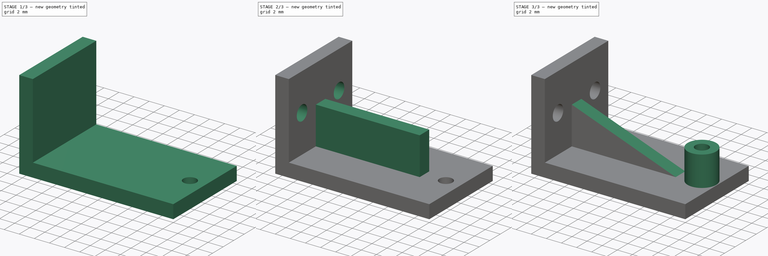
[diagram: build sequence overview — one tinted view per stage of 3, left to right]
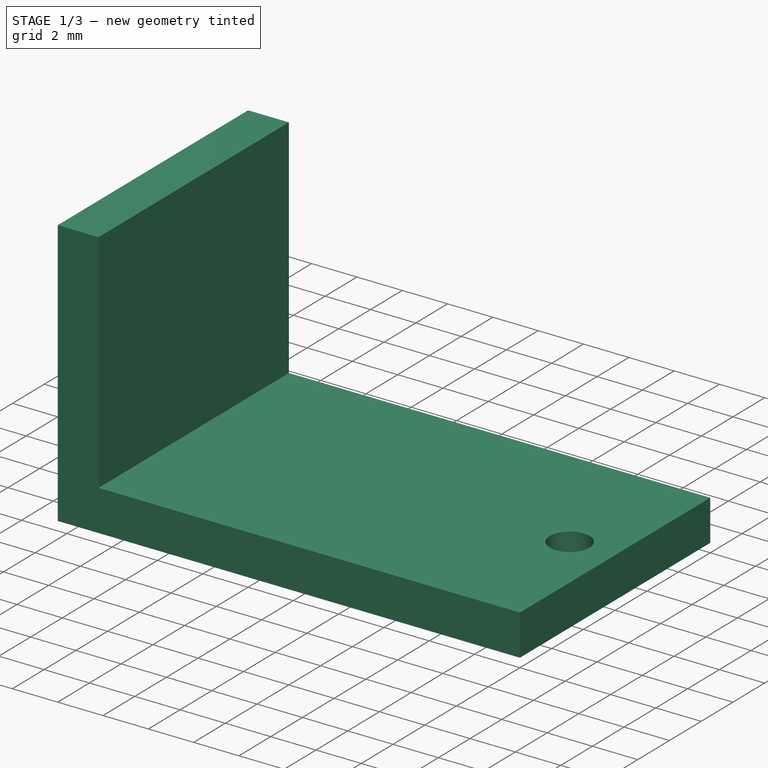
[diagram: stage 1 of 3 — iso view after this stage's code; geometry added in this stage tinted green]
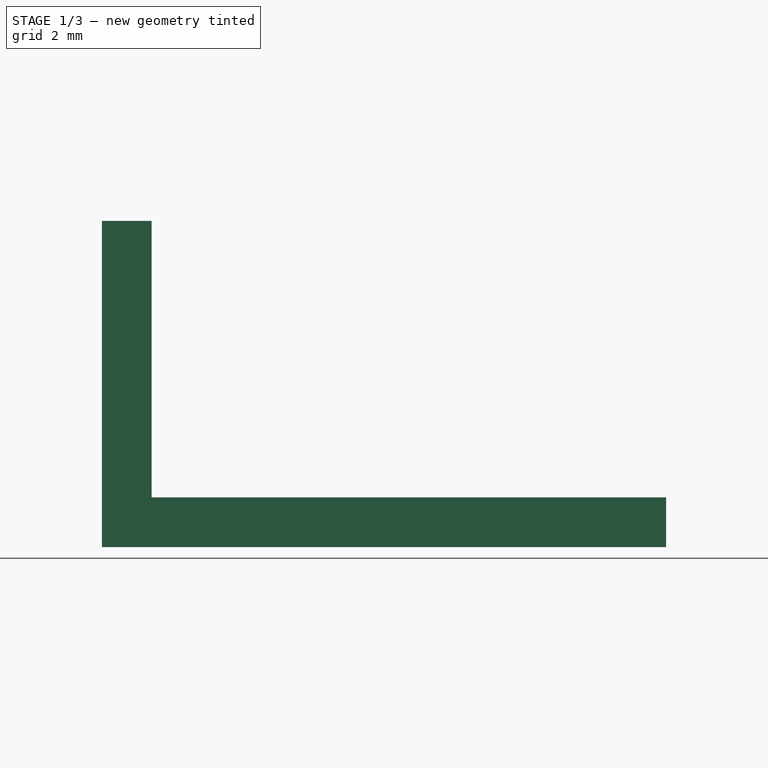
[diagram: stage 1 of 3 — front view after this stage's code; geometry added in this stage tinted green]
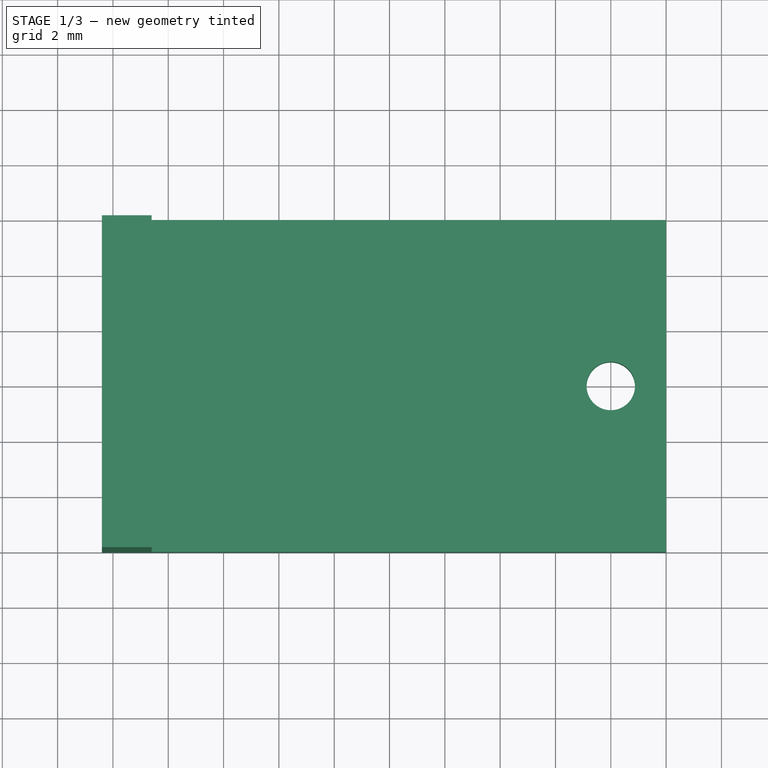
[diagram: stage 1 of 3 — top view after this stage's code; geometry added in this stage tinted green]
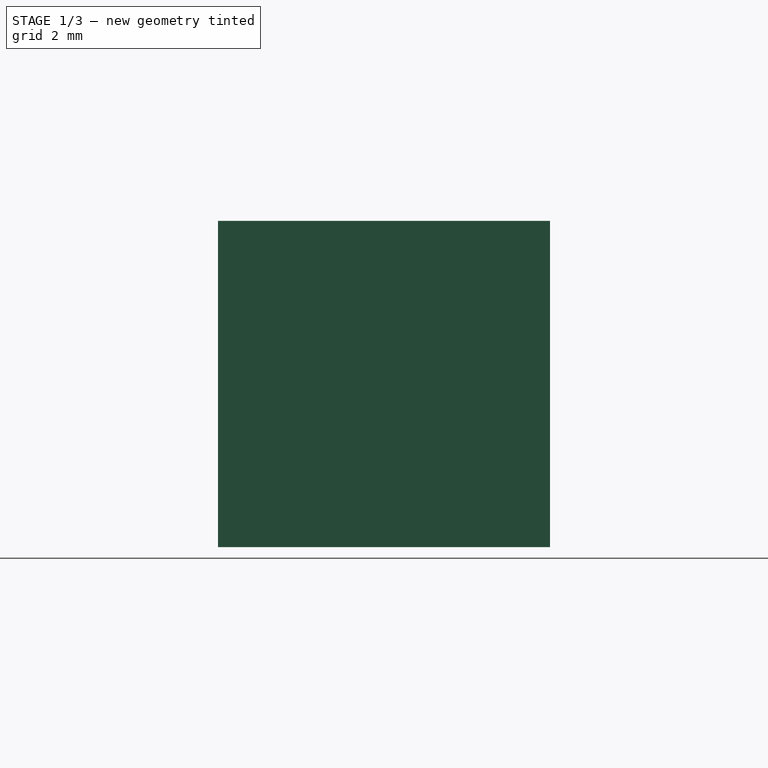
[diagram: stage 1 of 3 — right view after this stage's code; geometry added in this stage tinted green]
FCSTD DOCUMENT  (FreeCAD 0.16R4928 (Git))
Label: servo_stabilizer
License: All rights reserved
LicenseURL: http://en.wikipedia.org/wiki/All_rights_reserved
objects: Sketcher::SketchObject×6, PartDesign::Pad×4, PartDesign::Pocket×2
note: 18 computed .brp shape members not serialized (recipe doc carries the construction recipe); baked Part::Feature solids carry a one-line shape summary decoded from their .brp

FEATURE [Sketcher::SketchObject] Sketch
  sketch-geometry (6):
    g0: Circle CenterX=0 CenterY=0 CenterZ=0 NormalX=0 NormalY=0 NormalZ=1 Radius=0.875
    g1: LineSegment StartX=-18.4 StartY=6 StartZ=0 EndX=2 EndY=6 EndZ=0
    g2: LineSegment StartX=2 StartY=-6 StartZ=0 EndX=-18.4 EndY=-6 EndZ=0
    g3: LineSegment StartX=-18.4 StartY=-6 StartZ=0 EndX=-18.4 EndY=6 EndZ=0
    g4: LineSegment StartX=2 StartY=0 StartZ=0 EndX=2 EndY=6 EndZ=0
    g5: LineSegment StartX=2 StartY=0 StartZ=0 EndX=2 EndY=-6 EndZ=0
  constraints (17):
    c: Coincident(g0,g-1)
    c: Radius(g0) = 0.875
    c: Coincident(g2,g3)
    c: Coincident(g3,g1)
    c: Horizontal(g1)
    c: Horizontal(g2)
    c: Vertical(g3)
    c: Distance(g1) = 20.4
    c: Vertical(g4)
    c: Coincident(g4,g1)
    c: Coincident(g5,g4)
    c: Coincident(g5,g2)
    c: Vertical(g5)
    c: Equal(g4,g5)
    c: DistanceY(g1,g2) = -12
    c: PointOnObject(g4,g-1)
    c: DistanceX(g-1,g4) = 2
FEATURE [PartDesign::Pad] Pad
  Length = 1.8
  Length2 = 100
  Sketch = -> Sketch
  Type = 0
FEATURE [Sketcher::SketchObject] Sketch001
  ExternalGeometry = -> [Pad]
  Placement = pos=(0,0,1.8) rot=(0,0,1;0rad)
  Support = -> Pad [Face8]
  sketch-geometry (4):
    g0: LineSegment StartX=-18.4 StartY=6 StartZ=0 EndX=-16.6 EndY=6 EndZ=0
    g1: LineSegment StartX=-16.6 StartY=6 StartZ=0 EndX=-16.6 EndY=-6 EndZ=0
    g2: LineSegment StartX=-16.6 StartY=-6 StartZ=0 EndX=-18.4 EndY=-6 EndZ=0
    g3: LineSegment StartX=-18.4 StartY=-6 StartZ=0 EndX=-18.4 EndY=6 EndZ=0
  constraints (11):
    c: Coincident(g0,g1)
    c: Coincident(g1,g2)
    c: Coincident(g2,g3)
    c: Coincident(g3,g0)
    c: Horizontal(g0)
    c: Horizontal(g2)
    c: Vertical(g1)
    c: Vertical(g3)
    c: Coincident(g0,g-3)
    c: Coincident(g2,g-3)
    c: Distance(g2) = 1.8
FEATURE [PartDesign::Pad] Pad001
  Length = 10
  Length2 = 100
  Sketch = -> Sketch001
  Type = 0
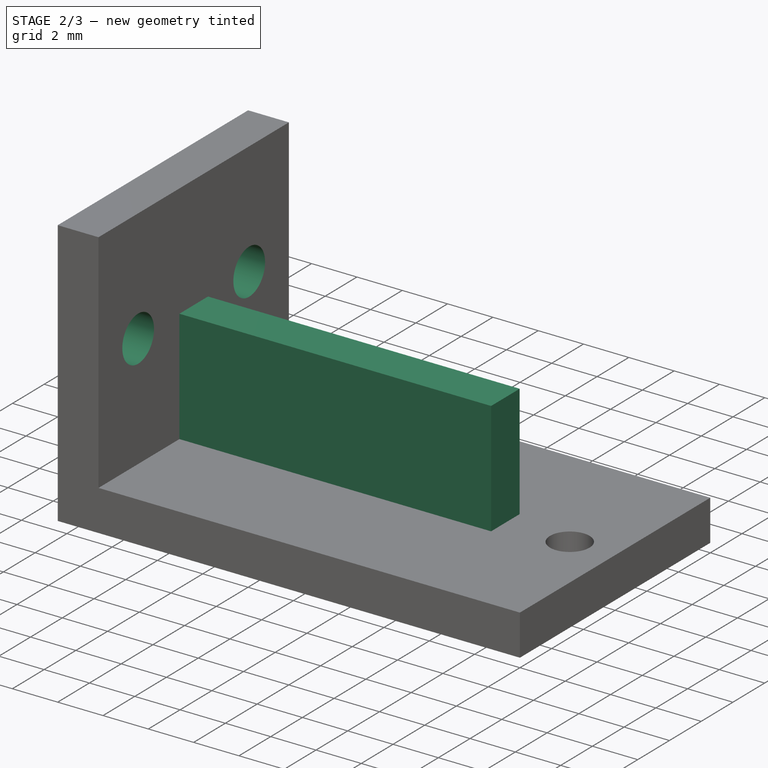
[diagram: stage 2 of 3 — iso view after this stage's code; geometry added in this stage tinted green]
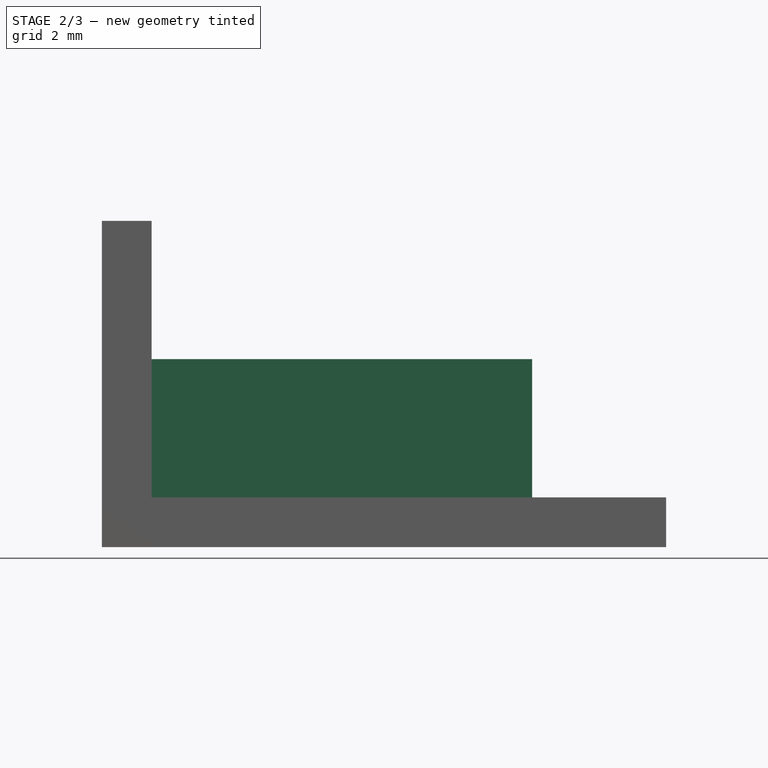
[diagram: stage 2 of 3 — front view after this stage's code; geometry added in this stage tinted green]
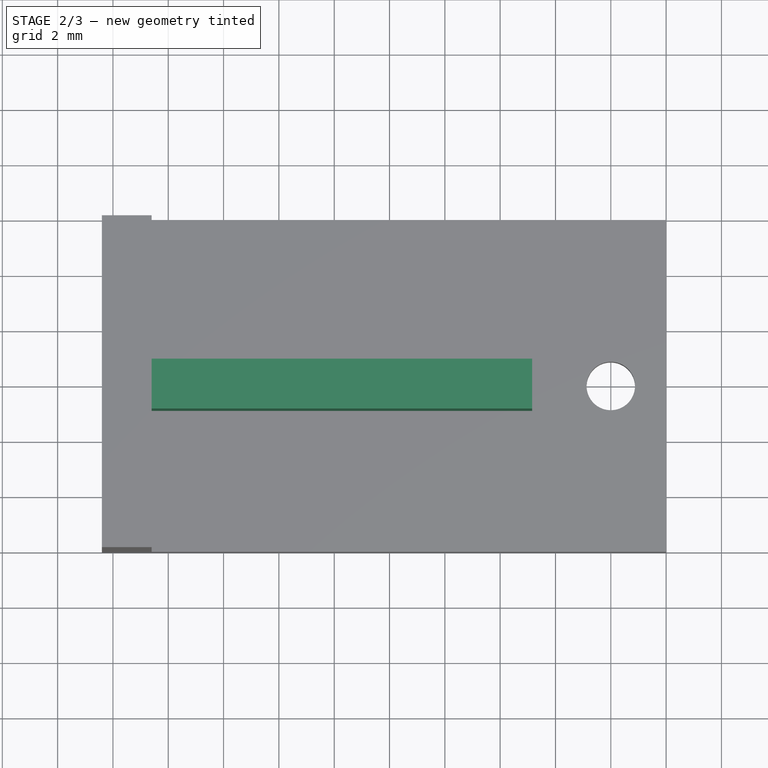
[diagram: stage 2 of 3 — top view after this stage's code; geometry added in this stage tinted green]
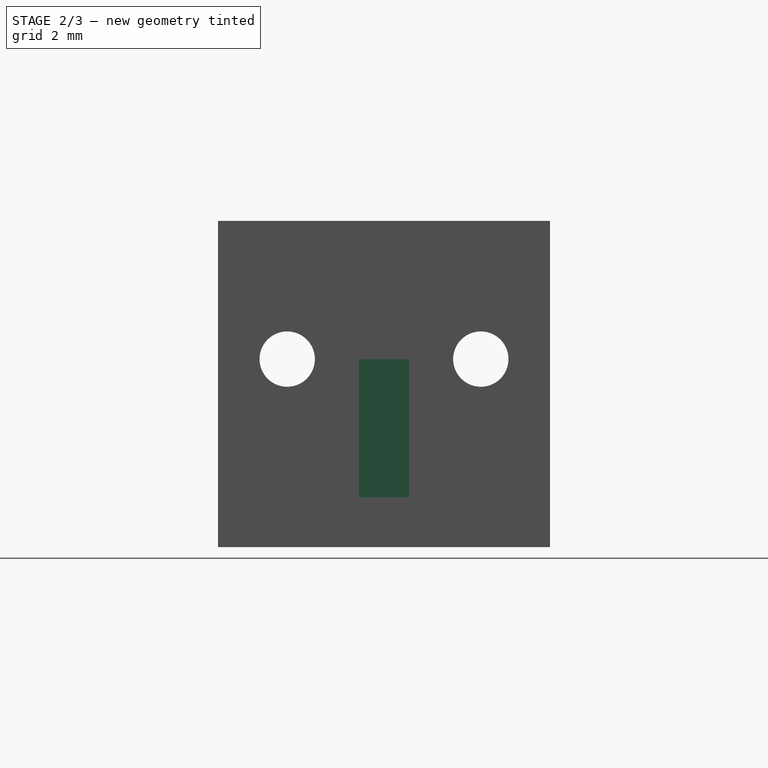
[diagram: stage 2 of 3 — right view after this stage's code; geometry added in this stage tinted green]
FEATURE [Sketcher::SketchObject] Sketch002
  ExternalGeometry = -> [Pad001]
  Placement = pos=(-16.6,0,0) rot=(0.57735,0.57735,0.57735;2.0944rad)
  Support = -> Pad001 [Face10]
  sketch-geometry (5):
    g0: LineSegment [constr] StartX=0 StartY=11.8 StartZ=0 EndX=0 EndY=6.8 EndZ=0
    g1: LineSegment [constr] StartX=0 StartY=6.8 StartZ=0 EndX=3.5 EndY=6.8 EndZ=0
    g2: LineSegment [constr] StartX=0 StartY=6.8 StartZ=0 EndX=-3.5 EndY=6.8 EndZ=0
    g3: Circle CenterX=-3.5 CenterY=6.8 CenterZ=0 NormalX=0 NormalY=0 NormalZ=1 Radius=1
    g4: Circle CenterX=3.5 CenterY=6.8 CenterZ=0 NormalX=0 NormalY=0 NormalZ=1 Radius=1
  constraints (14):
    c: PointOnObject(g0,g-3)
    c: PointOnObject(g0,g-2)
    c: Vertical(g0)
    c: Coincident(g1,g0)
    c: Horizontal(g1)
    c: Horizontal(g2)
    c: Coincident(g0,g2)
    c: Equal(g1,g2)
    c: Coincident(g4,g1)
    c: Distance(g0) = 5
    c: Coincident(g3,g2)
    c: Equal(g3,g4)
    c: DistanceX(g2,g1) = 7
    c: Radius(g3) = 1
FEATURE [PartDesign::Pocket] Pocket
  Length = 5
  Sketch = -> Sketch002
  Type = 1
FEATURE [Sketcher::SketchObject] Sketch003
  ExternalGeometry = -> [Pocket]
  Placement = pos=(0,0,1.8) rot=(0,0,1;0rad)
  Support = -> Pocket [Face5]
  sketch-geometry (4):
    g0: LineSegment StartX=-16.6 StartY=-0.9 StartZ=0 EndX=-2.84215 EndY=-0.9 EndZ=0
    g1: LineSegment StartX=-2.84215 StartY=-0.9 StartZ=0 EndX=-2.84215 EndY=0.9 EndZ=0
    g2: LineSegment StartX=-2.84215 StartY=0.9 StartZ=0 EndX=-16.6 EndY=0.9 EndZ=0
    g3: LineSegment StartX=-16.6 StartY=0.9 StartZ=0 EndX=-16.6 EndY=-0.9 EndZ=0
  constraints (11):
    c: Coincident(g0,g1)
    c: Coincident(g1,g2)
    c: Coincident(g2,g3)
    c: Coincident(g3,g0)
    c: Horizontal(g0)
    c: Horizontal(g2)
    c: Vertical(g1)
    c: Vertical(g3)
    c: PointOnObject(g0,g-3)
    c: Distance(g1) = 1.8
    c: Symmetric(g1,g0,g-1)
FEATURE [PartDesign::Pad] Pad002
  Length = 5
  Length2 = 100
  Sketch = -> Sketch003
  Type = 0
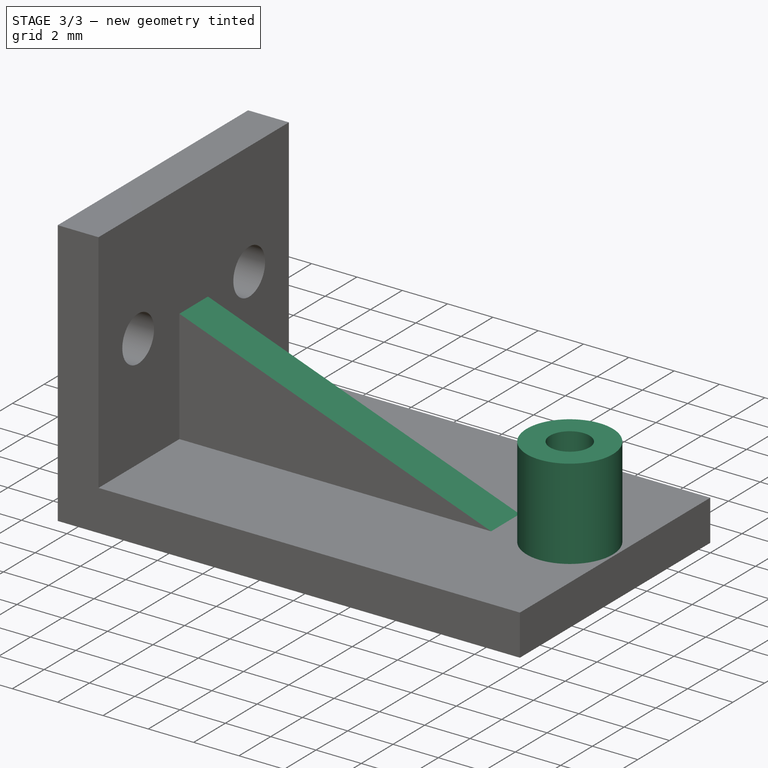
[diagram: stage 3 of 3 — iso view after this stage's code; geometry added in this stage tinted green]
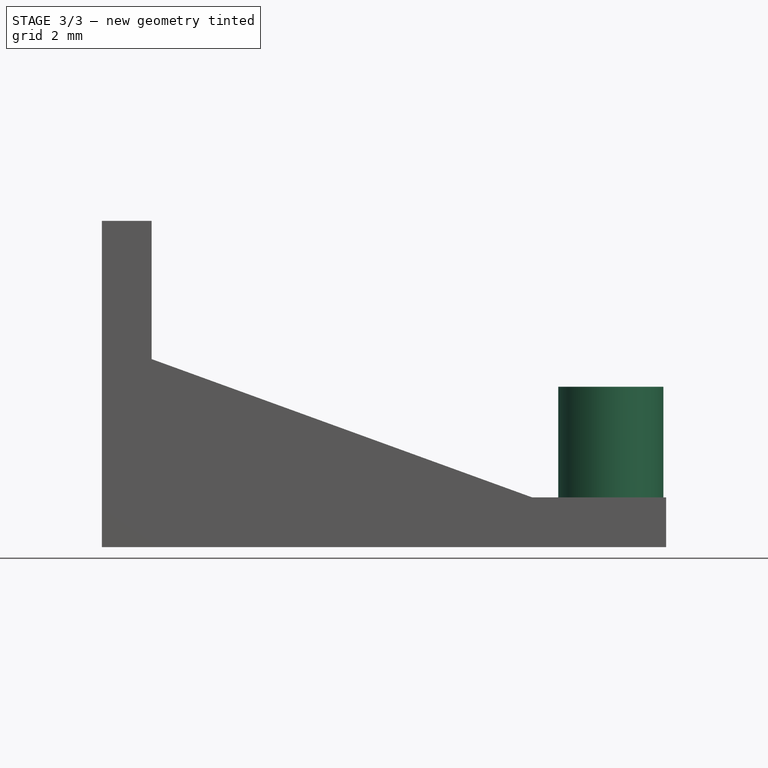
[diagram: stage 3 of 3 — front view after this stage's code; geometry added in this stage tinted green]
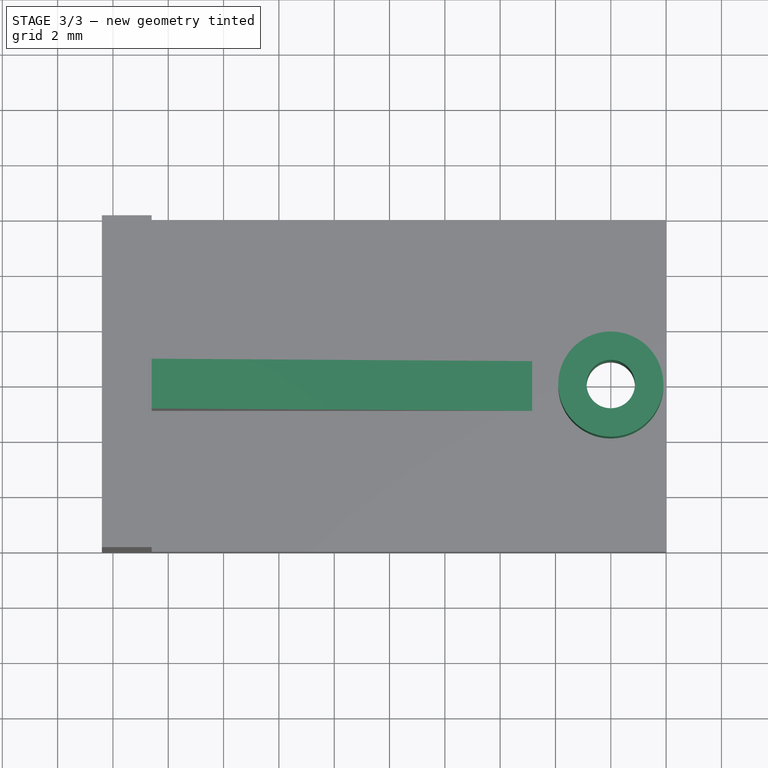
[diagram: stage 3 of 3 — top view after this stage's code; geometry added in this stage tinted green]
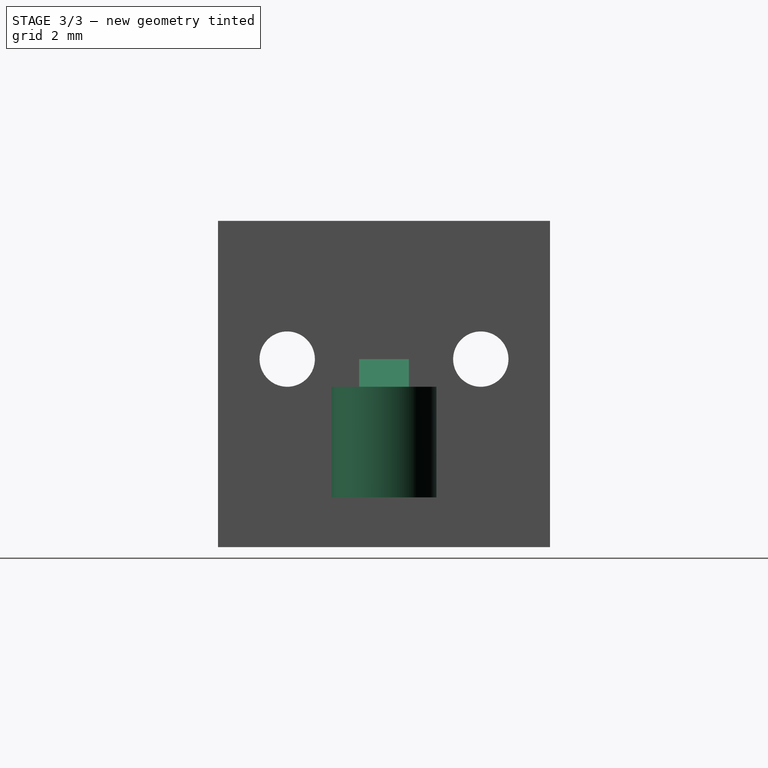
[diagram: stage 3 of 3 — right view after this stage's code; geometry added in this stage tinted green]
FEATURE [Sketcher::SketchObject] Sketch004
  ExternalGeometry = -> [Pad002]
  Placement = pos=(0,-0.9,0) rot=(1,0,0;1.5708rad)
  Support = -> Pad002 [Face11]
  sketch-geometry (3):
    g0: LineSegment StartX=-16.6 StartY=6.8 StartZ=0 EndX=-2.84215 EndY=1.8 EndZ=0
    g1: LineSegment StartX=-16.6 StartY=6.8 StartZ=0 EndX=-2.84215 EndY=6.8 EndZ=0
    g2: LineSegment StartX=-2.84215 StartY=1.8 StartZ=0 EndX=-2.84215 EndY=6.8 EndZ=0
  constraints (6):
    c: Coincident(g0,g-4)
    c: Coincident(g0,g-3)
    c: Coincident(g1,g0)
    c: Coincident(g1,g-4)
    c: Coincident(g2,g0)
    c: Coincident(g2,g1)
FEATURE [PartDesign::Pocket] Pocket001
  Length = 0
  Sketch = -> Sketch004
  Type = 2
FEATURE [Sketcher::SketchObject] Sketch005
  ExternalGeometry = -> [Pocket001]
  Placement = pos=(0,0,1.8) rot=(0,0,1;0rad)
  Support = -> Pocket001 [Face5]
  sketch-geometry (3):
    g0: Circle CenterX=0 CenterY=0 CenterZ=0 NormalX=0 NormalY=0 NormalZ=1 Radius=1.9
    g1: Circle CenterX=0 CenterY=0 CenterZ=0 NormalX=0 NormalY=0 NormalZ=1 Radius=0.875
    g2: GeomPoint [constr] X=0 Y=0.875 Z=0
  constraints (6):
    c: Coincident(g0,g-1)
    c: Radius(g0) = 1.9
    c: Coincident(g1,g-1)
    c: PointOnObject(g2,g1)
    c: PointOnObject(g2,g-3)
    c: PointOnObject(g2,g-2)
FEATURE [PartDesign::Pad] Pad003
  Length = 4
  Length2 = 100
  Sketch = -> Sketch005
  Type = 0
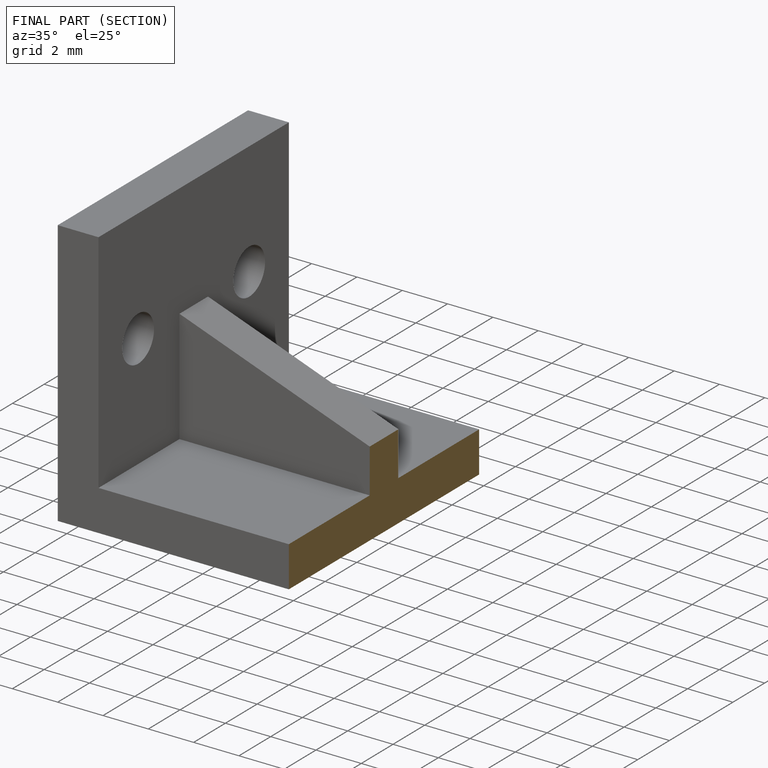
[diagram: finished part — half-section view (interior)]
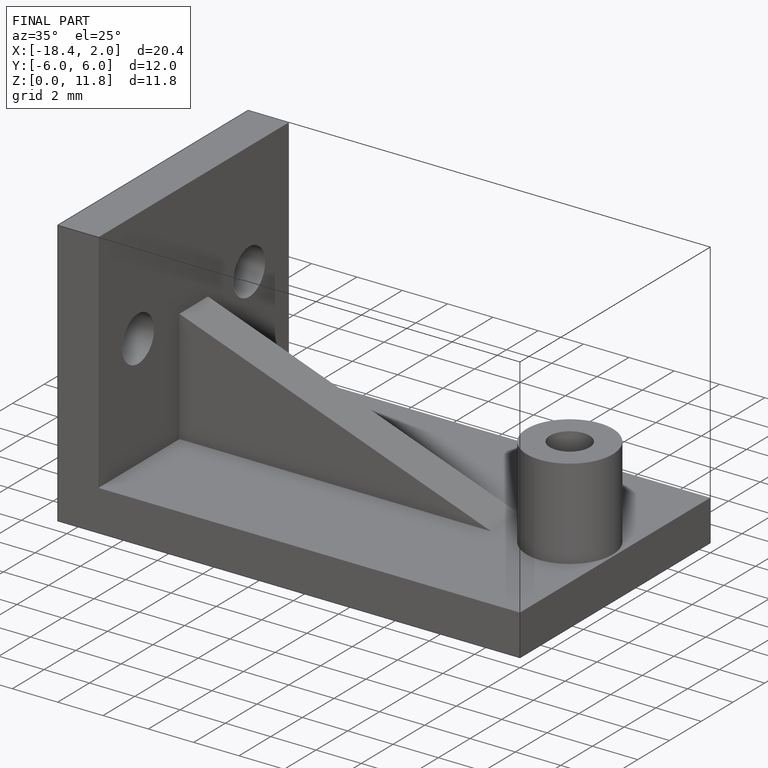
[diagram: finished part — iso view with bounding-box wireframe]
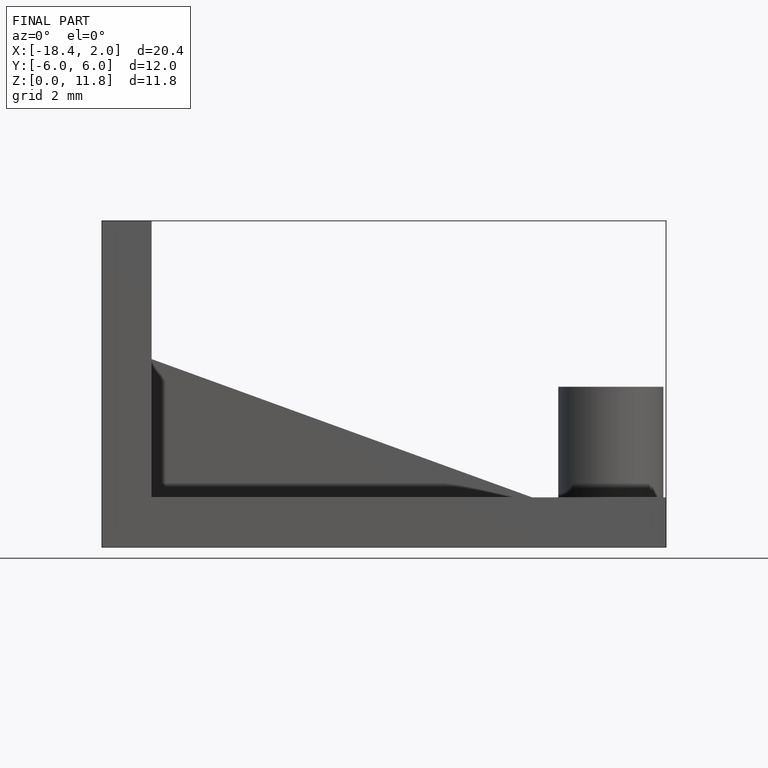
[diagram: finished part — front view with bounding-box wireframe]
